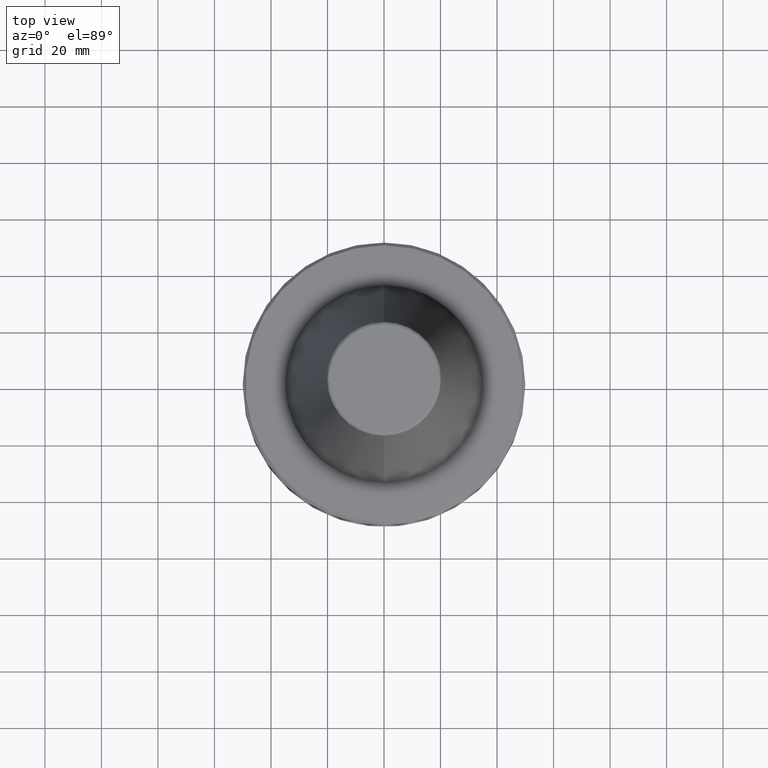
[diagram: clean part render]
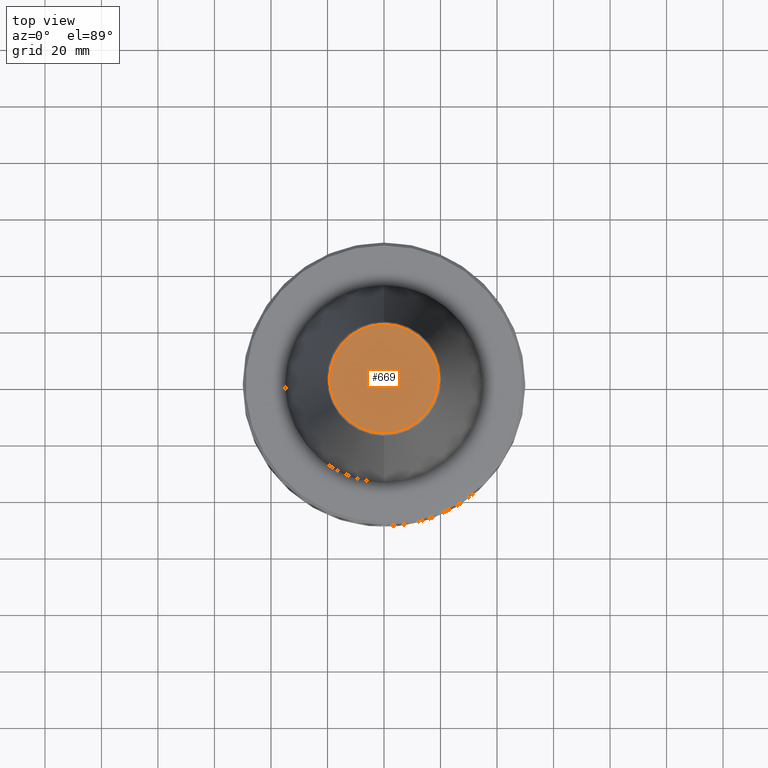
[diagram: same view with one face highlighted and labeled with its STEP entity id]
A machine part, top view. The second image highlights one B-rep face of the part: STEP entity #669.
In plain terms, the highlighted planar face has unit normal (0, 0, -1).
Its self-contained STEP definition (entity closure, byte-faithful):
#225 = CARTESIAN_POINT ( 'NONE',  ( 19.21428326503027500, 0.0000000000000000000, 101.8000000000000000 ) ) ;
#301 = ORIENTED_EDGE ( 'NONE', *, *, #325, .F. ) ;
#325 = EDGE_CURVE ( 'NONE', #828, #900, #1237, .T. ) ;
#338 = CARTESIAN_POINT ( 'NONE',  ( -19.21428326503027900, -38.42856653006053600, 101.8000000000000000 ) ) ;
#426 = CARTESIAN_POINT ( 'NONE',  ( 19.21428326503027500, 0.0000000000000000000, 101.8000000000000000 ) ) ;
#476 = CARTESIAN_POINT ( 'NONE',  ( -19.21428326503027500, 2.377307613035567900E-015, 101.8000000000000000 ) ) ;
#596 = DIRECTION ( 'NONE',  ( -1.000000000000000000, 0.0000000000000000000, -0.0000000000000000000 ) ) ;
#598 = DIRECTION ( 'NONE',  ( 0.0000000000000000000, 0.0000000000000000000, -1.000000000000000000 ) ) ;
#602 = CARTESIAN_POINT ( 'NONE',  ( 0.0000000000000000000, 0.0000000000000000000, 101.8000000000000000 ) ) ;
#603 = PLANE ( 'NONE',  #871 ) ;
#669 = ADVANCED_FACE ( 'NONE', ( #987 ), #603, .F. ) ;
#828 = VERTEX_POINT ( 'NONE', #476 ) ;
#871 = AXIS2_PLACEMENT_3D ( 'NONE', #602, #598, #596 ) ;
#894 = ORIENTED_EDGE ( 'NONE', *, *, #1219, .F. ) ;
#900 = VERTEX_POINT ( 'NONE', #426 ) ;
#987 = FACE_OUTER_BOUND ( 'NONE', #1066, .T. ) ;
#995 = CARTESIAN_POINT ( 'NONE',  ( 19.21428326503027500, -38.42856653006053600, 101.8000000000000000 ) ) ;
#1066 = EDGE_LOOP ( 'NONE', ( #894, #301 ) ) ;
#1099 = CARTESIAN_POINT ( 'NONE',  ( -19.21428326503027500, 2.377307613035567900E-015, 101.8000000000000000 ) ) ;
#1162 = CARTESIAN_POINT ( 'NONE',  ( -19.21428326503026800, 38.42856653006053600, 101.8000000000000000 ) ) ;
#1174 = CARTESIAN_POINT ( 'NONE',  ( 19.21428326503027500, 38.42856653006053600, 101.8000000000000000 ) ) ;
#1191 =( BOUNDED_CURVE ( )  B_SPLINE_CURVE ( 3, ( #225, #995, #338, #1099 ),
 .UNSPECIFIED., .F., .F. ) 
 B_SPLINE_CURVE_WITH_KNOTS ( ( 4, 4 ),
 ( 0.0000000000000000000, 1.000000000000000000 ),
 .UNSPECIFIED. ) 
 CURVE ( )  GEOMETRIC_REPRESENTATION_ITEM ( )  RATIONAL_B_SPLINE_CURVE ( ( 1.000000000000000000, 0.3333333333333333700, 0.3333333333333333700, 1.000000000000000000 ) ) 
 REPRESENTATION_ITEM ( '' )  );
#1219 = EDGE_CURVE ( 'NONE', #900, #828, #1191, .T. ) ;
#1237 =( BOUNDED_CURVE ( )  B_SPLINE_CURVE ( 3, ( #1333, #1162, #1174, #1316 ),
 .UNSPECIFIED., .F., .T. ) 
 B_SPLINE_CURVE_WITH_KNOTS ( ( 4, 4 ),
 ( 0.0000000000000000000, 1.000000000000000000 ),
 .UNSPECIFIED. ) 
 CURVE ( )  GEOMETRIC_REPRESENTATION_ITEM ( )  RATIONAL_B_SPLINE_CURVE ( ( 1.000000000000000000, 0.3333333333333333700, 0.3333333333333333700, 1.000000000000000000 ) ) 
 REPRESENTATION_ITEM ( '' )  );
#1316 = CARTESIAN_POINT ( 'NONE',  ( 19.21428326503027500, 0.0000000000000000000, 101.8000000000000000 ) ) ;
#1333 = CARTESIAN_POINT ( 'NONE',  ( -19.21428326503027500, 2.377307613035567900E-015, 101.8000000000000000 ) ) ;